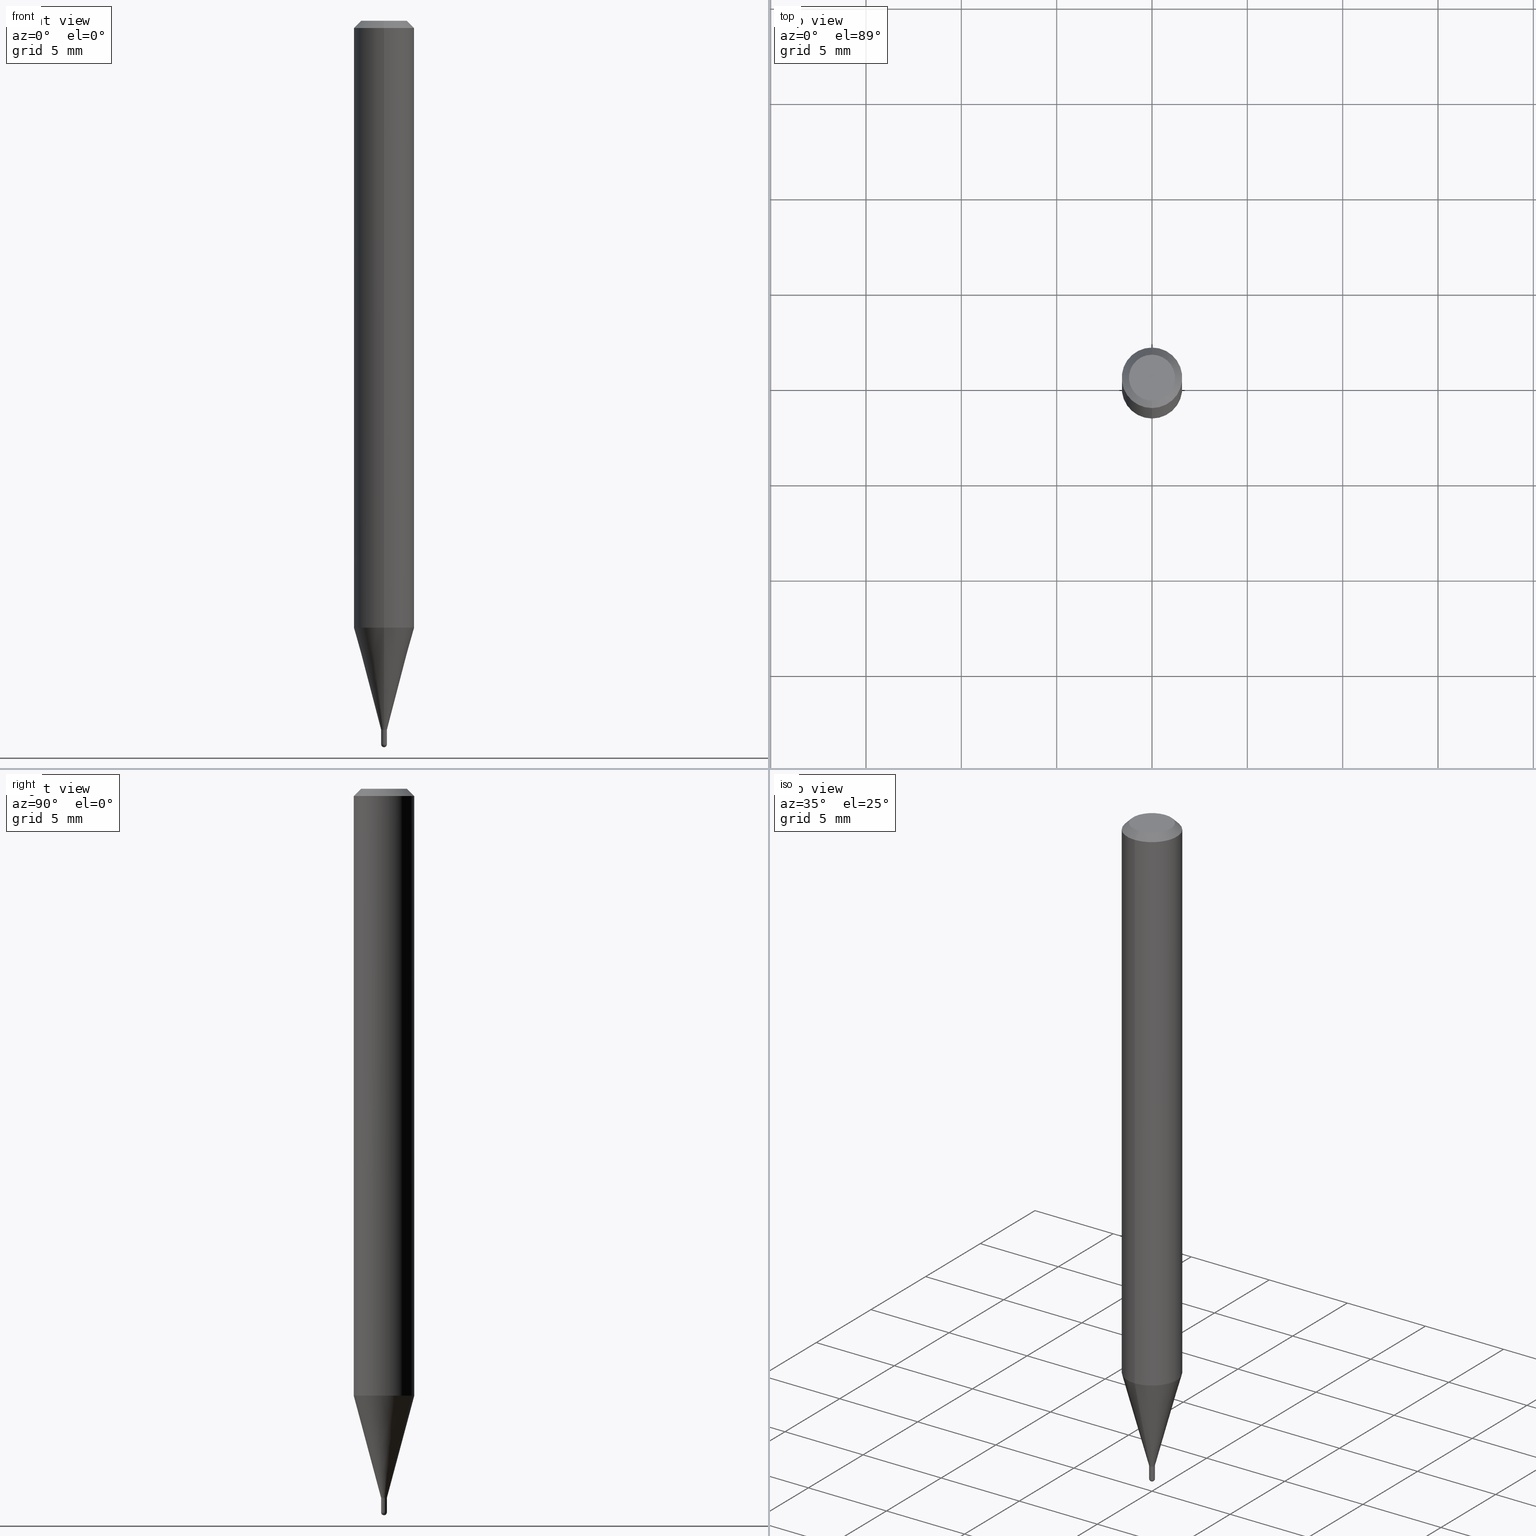
[diagram: canonical four-view strip — front | top / right | iso, engineering-drawing reading convention]
A machine part, canonical four-view strip (front | top / right | iso — engineering-drawing reading convention). The complete STEP part file that produces these views, byte-faithful:
ISO-10303-21;
HEADER;
FILE_DESCRIPTION (( 'STEP AP203' ),
    '1' );
FILE_NAME ('01435.STEP',
    '2024-03-07T20:50:26',
    ( '' ),
    ( '' ),
    'SwSTEP 2.0',
    'SolidWorks 2023',
    '' );
FILE_SCHEMA (( 'CONFIG_CONTROL_DESIGN' ));
ENDSEC;

DATA;
#1 = APPROVAL_STATUS ( 'not_yet_approved' ) ;
#2 = CONICAL_SURFACE ( 'NONE', #358, 0.005999999999999923797, 0.2617993877991573459 ) ;
#3 = DIRECTION ( 'NONE',  ( -6.982962677686266711E-15, -1.000000000000000000, 0.000000000000000000 ) ) ;
#4 = CARTESIAN_POINT ( 'NONE',  ( 3.064497474047025979E-29, -4.375333618994468371E-15, -1.253139129372365046 ) ) ;
#5 = EDGE_CURVE ( 'NONE', #362, #50, #103, .T. ) ;
#6 = FACE_OUTER_BOUND ( 'NONE', #283, .T. ) ;
#7 = PERSON_AND_ORGANIZATION_ROLE ( 'creator' ) ;
#8 = APPLICATION_CONTEXT ( 'configuration controlled 3d designs of mechanical parts and assemblies' ) ;
#9 = CIRCLE ( 'NONE', #363, 0.005999999999999923797 ) ;
#10 = ORIENTED_EDGE ( 'NONE', *, *, #205, .T. ) ;
#11 = ORIENTED_EDGE ( 'NONE', *, *, #105, .F. ) ;
#12 = APPROVAL_ROLE ( '' ) ;
#13 = DIRECTION ( 'NONE',  ( 1.839019923739648830E-15, 0.2588190451025317862, 0.9659258262890653146 ) ) ;
#14 = VERTEX_POINT ( 'NONE', #230 ) ;
#15 = AXIS2_PLACEMENT_3D ( 'NONE', #183, #29, #181 ) ;
#16 = CIRCLE ( 'NONE', #75, 0.006000000000000000992 ) ;
#17 = PRODUCT ( '01435', '01435', '', ( #393 ) ) ;
#18 = ORIENTED_EDGE ( 'NONE', *, *, #115, .F. ) ;
#19 = DIRECTION ( 'NONE',  ( 7.105427357601001070E-15, 1.000000000000000000, 0.000000000000000000 ) ) ;
#20 = EDGE_LOOP ( 'NONE', ( #433, #259, #97, #353, #138 ) ) ;
#21 = PRODUCT_DEFINITION ( 'UNKNOWN', '', #420, #443 ) ;
#22 = DIRECTION ( 'NONE',  ( -6.982962677686266711E-15, -1.000000000000000000, 0.000000000000000000 ) ) ;
#23 = ORIENTED_EDGE ( 'NONE', *, *, #223, .T. ) ;
#24 = APPROVAL_PERSON_ORGANIZATION ( #400, #242, #154 ) ;
#25 = EDGE_LOOP ( 'NONE', ( #287, #248, #18, #164 ) ) ;
#26 = VECTOR ( 'NONE', #206, 39.37007874015748143 ) ;
#27 = EDGE_CURVE ( 'NONE', #14, #507, #262, .T. ) ;
#28 = DIRECTION ( 'NONE',  ( -2.445456695284808407E-29, 3.491498682341725193E-15, 1.000000000000000000 ) ) ;
#29 = DIRECTION ( 'NONE',  ( -2.445456695284808407E-29, 3.491498682341725193E-15, 1.000000000000000000 ) ) ;
#30 = ORIENTED_EDGE ( 'NONE', *, *, #346, .F. ) ;
#31 = CARTESIAN_POINT ( 'NONE',  ( 0.000000000000000000, 0.000000000000000000, 0.000000000000000000 ) ) ;
#32 = EDGE_LOOP ( 'NONE', ( #240, #335 ) ) ;
#33 = CIRCLE ( 'NONE', #218, 0.006000000000000077320 ) ;
#34 = DIRECTION ( 'NONE',  ( -6.982962677686265922E-15, -1.000000000000000000, 3.483106191921935554E-15 ) ) ;
#35 = CC_DESIGN_PERSON_AND_ORGANIZATION_ASSIGNMENT ( #199, #7, ( #21 ) ) ;
#36 = CARTESIAN_POINT ( 'NONE',  ( 3.668185042927215431E-31, -5.237248023512590131E-17, -0.01500000000000000812 ) ) ;
#37 = LINE ( 'NONE', #421, #389 ) ;
#38 = FACE_OUTER_BOUND ( 'NONE', #32, .T. ) ;
#39 = CARTESIAN_POINT ( 'NONE',  ( 0.000000000000000000, 0.000000000000000000, 0.000000000000000000 ) ) ;
#40 = ADVANCED_FACE ( 'NONE', ( #381 ), #473, .T. ) ;
#41 = DIRECTION ( 'NONE',  ( -6.982962677686265922E-15, -1.000000000000000000, 3.491498682341725193E-15 ) ) ;
#42 = DATE_AND_TIME ( #397, #279 ) ;
#43 = CARTESIAN_POINT ( 'NONE',  ( 3.580166332255040005E-29, -5.111528680066365187E-15, -1.463999999999999968 ) ) ;
#44 = AXIS2_PLACEMENT_3D ( 'NONE', #386, #76, #147 ) ;
#45 = CARTESIAN_POINT ( 'NONE',  ( 3.653530396440595201E-29, -5.216273120231661712E-15, -1.494000000000000439 ) ) ;
#46 = EDGE_CURVE ( 'NONE', #507, #50, #37, .T. ) ;
#47 = CARTESIAN_POINT ( 'NONE',  ( 0.006000000000000000992, -4.189777606611760791E-17, 2.925706065477561668E-31 ) ) ;
#48 = CIRCLE ( 'NONE', #415, 0.006000000000000000125 ) ;
#49 = DATE_AND_TIME ( #163, #304 ) ;
#50 = VERTEX_POINT ( 'NONE', #77 ) ;
#51 = ADVANCED_FACE ( 'NONE', ( #310 ), #265, .T. ) ;
#52 = DIRECTION ( 'NONE',  ( 6.982962677686265922E-15, 1.000000000000000000, -3.483106191921935554E-15 ) ) ;
#53 = COORDINATED_UNIVERSAL_TIME_OFFSET ( 5, 0, .BEHIND. ) ;
#54 = ORIENTED_EDGE ( 'NONE', *, *, #205, .F. ) ;
#55 = DIRECTION ( 'NONE',  ( -2.445456695284808127E-29, 3.491498682341725193E-15, 1.000000000000000000 ) ) ;
#56 = CARTESIAN_POINT ( 'NONE',  ( 3.580148601896959816E-29, -5.111554070948285808E-15, -1.463999999999999968 ) ) ;
#57 = CIRCLE ( 'NONE', #486, 0.006000000000000000992 ) ;
#58 = AXIS2_PLACEMENT_3D ( 'NONE', #334, #332, #52 ) ;
#59 = PERSON_AND_ORGANIZATION_ROLE ( 'classification_officer' ) ;
#60 = EDGE_CURVE ( 'NONE', #407, #302, #33, .T. ) ;
#61 = ORIENTED_EDGE ( 'NONE', *, *, #325, .T. ) ;
#62 = CALENDAR_DATE ( 2024, 7, 3 ) ;
#63 = ORIENTED_EDGE ( 'NONE', *, *, #440, .F. ) ;
#64 = FACE_OUTER_BOUND ( 'NONE', #456, .T. ) ;
#65 = DIRECTION ( 'NONE',  ( -6.982962677686265922E-15, -1.000000000000000000, 0.000000000000000000 ) ) ;
#66 = FACE_OUTER_BOUND ( 'NONE', #258, .T. ) ;
#67 = SPHERICAL_SURFACE ( 'NONE', #422, 0.006000000000000077320 ) ;
#68 = EDGE_CURVE ( 'NONE', #124, #50, #249, .T. ) ;
#69 = AXIS2_PLACEMENT_3D ( 'NONE', #351, #348, #385 ) ;
#70 = AXIS2_PLACEMENT_3D ( 'NONE', #435, #369, #89 ) ;
#71 = CARTESIAN_POINT ( 'NONE',  ( 3.580148601896960376E-29, -5.111554070948286597E-15, -1.464000000000000190 ) ) ;
#72 = DIRECTION ( 'NONE',  ( -1.000000000000000000, 6.982962677686265922E-15, -4.876176775795935793E-29 ) ) ;
#73 = EDGE_LOOP ( 'NONE', ( #499, #119, #253, #63 ) ) ;
#74 = ADVANCED_FACE ( 'NONE', ( #286 ), #396, .T. ) ;
#75 = AXIS2_PLACEMENT_3D ( 'NONE', #406, #255, #93 ) ;
#76 = DIRECTION ( 'NONE',  ( -2.445456695284808407E-29, 3.491498682341725193E-15, 1.000000000000000000 ) ) ;
#77 = CARTESIAN_POINT ( 'NONE',  ( 4.440892098500933817E-16, 0.06249999999999995143, -0.01500000000000022669 ) ) ;
#78 = LINE ( 'NONE', #241, #250 ) ;
#79 = ADVANCED_FACE ( 'NONE', ( #238 ), #273, .T. ) ;
#80 = CIRCLE ( 'NONE', #445, 0.006000000000000077320 ) ;
#81 = ORIENTED_EDGE ( 'NONE', *, *, #27, .F. ) ;
#82 = AXIS2_PLACEMENT_3D ( 'NONE', #39, #196, #359 ) ;
#83 = DIRECTION ( 'NONE',  ( -2.445468806185136597E-29, 3.491481338843145583E-15, 1.000000000000000000 ) ) ;
#84 = FACE_OUTER_BOUND ( 'NONE', #20, .T. ) ;
#85 = PERSON_AND_ORGANIZATION ( #460, #177 ) ;
#86 = EDGE_LOOP ( 'NONE', ( #136, #131, #349, #123 ) ) ;
#87 = CC_DESIGN_DATE_AND_TIME_ASSIGNMENT ( #256, #166, ( #90 ) ) ;
#88 = AXIS2_PLACEMENT_3D ( 'NONE', #31, #317, #235 ) ;
#89 = DIRECTION ( 'NONE',  ( 1.000000000000000000, -6.982962677686266711E-15, 4.876176775795935232E-29 ) ) ;
#90 = SECURITY_CLASSIFICATION ( '', '', #337 ) ;
#91 = ORIENTED_EDGE ( 'NONE', *, *, #102, .F. ) ;
#92 = DIRECTION ( 'NONE',  ( 1.000000000000000000, -7.105427357601001070E-15, 4.926315508542082329E-29 ) ) ;
#93 = DIRECTION ( 'NONE',  ( 1.000000000000000000, -6.982962677686331397E-15, 0.000000000000000000 ) ) ;
#94 = EDGE_LOOP ( 'NONE', ( #213, #315 ) ) ;
#95 = DIRECTION ( 'NONE',  ( -2.445456695284808407E-29, 3.491498682341725193E-15, 1.000000000000000000 ) ) ;
#96 = ADVANCED_FACE ( 'NONE', ( #66 ), #329, .T. ) ;
#97 = ORIENTED_EDGE ( 'NONE', *, *, #105, .T. ) ;
#98 = FACE_OUTER_BOUND ( 'NONE', #297, .T. ) ;
#99 = ORIENTED_EDGE ( 'NONE', *, *, #160, .F. ) ;
#100 = CARTESIAN_POINT ( 'NONE',  ( -4.287811248607203282E-16, -0.06250000000000005551, -0.01499999999999979128 ) ) ;
#101 = VERTEX_POINT ( 'NONE', #201 ) ;
#102 = EDGE_CURVE ( 'NONE', #503, #319, #403, .T. ) ;
#103 = LINE ( 'NONE', #466, #186 ) ;
#104 = APPROVAL_STATUS ( 'not_yet_approved' ) ;
#105 = EDGE_CURVE ( 'NONE', #302, #503, #437, .T. ) ;
#106 = CARTESIAN_POINT ( 'NONE',  ( -4.189777606608140659E-17, -0.006000000000005052507, -1.463500000000000023 ) ) ;
#107 = AXIS2_PLACEMENT_3D ( 'NONE', #459, #95, #377 ) ;
#108 = VERTEX_POINT ( 'NONE', #156 ) ;
#109 = CLOSED_SHELL ( 'NONE', ( #483, #51, #451, #318, #231 ) ) ;
#110 = ORIENTED_EDGE ( 'NONE', *, *, #60, .F. ) ;
#111 = DIRECTION ( 'NONE',  ( -2.445456695284808407E-29, 3.491498682341725193E-15, 1.000000000000000000 ) ) ;
#112 = DIRECTION ( 'NONE',  ( 2.438088387897960049E-29, -3.491481338843145188E-15, -1.000000000000000000 ) ) ;
#113 = ADVANCED_FACE ( 'NONE', ( #126 ), #179, .T. ) ;
#114 = LOCAL_TIME ( 15, 50, 26.00000000000000000, #450 ) ;
#115 = EDGE_CURVE ( 'NONE', #276, #302, #16, .T. ) ;
#116 = ORIENTED_EDGE ( 'NONE', *, *, #478, .F. ) ;
#117 = CARTESIAN_POINT ( 'NONE',  ( 0.000000000000000000, 0.000000000000000000, 0.000000000000000000 ) ) ;
#118 = CARTESIAN_POINT ( 'NONE',  ( 3.580166332255040005E-29, -5.111528680066365187E-15, -1.463999999999999968 ) ) ;
#119 = ORIENTED_EDGE ( 'NONE', *, *, #134, .T. ) ;
#120 = DIRECTION ( 'NONE',  ( -4.937700262164674260E-15, -0.7071067811865632269, 0.7071067811865319186 ) ) ;
#121 = CC_DESIGN_PERSON_AND_ORGANIZATION_ASSIGNMENT ( #405, #355, ( #17 ) ) ;
#122 = CALENDAR_DATE ( 2024, 7, 3 ) ;
#123 = ORIENTED_EDGE ( 'NONE', *, *, #182, .F. ) ;
#124 = VERTEX_POINT ( 'NONE', #198 ) ;
#125 = CARTESIAN_POINT ( 'NONE',  ( -0.006000000000000000992, -5.121268336003407400E-15, -1.494000000000000439 ) ) ;
#126 = FACE_OUTER_BOUND ( 'NONE', #376, .T. ) ;
#127 = EDGE_LOOP ( 'NONE', ( #110, #233, #509, #11 ) ) ;
#128 = CIRCLE ( 'NONE', #15, 0.04749999999999999362 ) ;
#129 = DIRECTION ( 'NONE',  ( -2.445456695284808407E-29, 3.491498682341725193E-15, 1.000000000000000000 ) ) ;
#130 = AXIS2_PLACEMENT_3D ( 'NONE', #266, #55, #261 ) ;
#131 = ORIENTED_EDGE ( 'NONE', *, *, #346, .T. ) ;
#132 = ADVANCED_FACE ( 'NONE', ( #210 ), #482, .F. ) ;
#133 = CARTESIAN_POINT ( 'NONE',  ( 2.166551326140729092E-46, -3.093291782688908971E-32, -8.859495775648578081E-18 ) ) ;
#134 = EDGE_CURVE ( 'NONE', #507, #14, #314, .T. ) ;
#135 = DIRECTION ( 'NONE',  ( -6.982962677686265922E-15, -1.000000000000000000, 0.000000000000000000 ) ) ;
#136 = ORIENTED_EDGE ( 'NONE', *, *, #352, .T. ) ;
#137 = DIRECTION ( 'NONE',  ( -2.445456695284808688E-29, 3.491498682341725193E-15, 1.000000000000000000 ) ) ;
#138 = ORIENTED_EDGE ( 'NONE', *, *, #192, .F. ) ;
#139 = CARTESIAN_POINT ( 'NONE',  ( 3.316907271900976096E-16, 0.04749999999999999362, -1.702759352990562277E-16 ) ) ;
#140 = APPROVAL_PERSON_ORGANIZATION ( #301, #512, #12 ) ;
#141 = DIRECTION ( 'NONE',  ( -2.445456695284808688E-29, 3.491498682341725193E-15, 1.000000000000000000 ) ) ;
#142 = DIRECTION ( 'NONE',  ( -6.982962677686265922E-15, -1.000000000000000000, 0.000000000000000000 ) ) ;
#143 = DIRECTION ( 'NONE',  ( -2.445456695284808407E-29, 3.491498682341725193E-15, 1.000000000000000000 ) ) ;
#144 = EDGE_CURVE ( 'NONE', #454, #108, #322, .T. ) ;
#145 = APPLICATION_PROTOCOL_DEFINITION ( 'international standard', 'config_control_design', 1994, #8 ) ;
#146 = CIRCLE ( 'NONE', #330, 0.006000000000000000992 ) ;
#147 = DIRECTION ( 'NONE',  ( -6.982962677686265922E-15, -1.000000000000000000, 0.000000000000000000 ) ) ;
#148 = CC_DESIGN_PERSON_AND_ORGANIZATION_ASSIGNMENT ( #296, #59, ( #90 ) ) ;
#149 = CYLINDRICAL_SURFACE ( 'NONE', #69, 0.005999999999999923797 ) ;
#150 = CARTESIAN_POINT ( 'NONE',  ( 3.653017296667086671E-29, -5.217007908311148520E-15, -1.494000000000000217 ) ) ;
#151 = LOCAL_TIME ( 15, 50, 26.00000000000000000, #53 ) ;
#152 = AXIS2_PLACEMENT_3D ( 'NONE', #191, #357, #3 ) ;
#153 = AXIS2_PLACEMENT_3D ( 'NONE', #36, #111, #34 ) ;
#154 = APPROVAL_ROLE ( '' ) ;
#155 = DIRECTION ( 'NONE',  ( -2.445456695284808407E-29, 3.491498682341725193E-15, 1.000000000000000000 ) ) ;
#156 = CARTESIAN_POINT ( 'NONE',  ( 4.263256414564111635E-17, 0.005999999999994795087, -1.463500000000000023 ) ) ;
#157 = ORIENTED_EDGE ( 'NONE', *, *, #367, .T. ) ;
#158 = DIRECTION ( 'NONE',  ( -6.982962677686265922E-15, -1.000000000000000000, 0.000000000000000000 ) ) ;
#159 = VECTOR ( 'NONE', #13, 39.37007874015748143 ) ;
#160 = EDGE_CURVE ( 'NONE', #338, #108, #303, .T. ) ;
#161 = LINE ( 'NONE', #481, #159 ) ;
#162 = CARTESIAN_POINT ( 'NONE',  ( 3.653530396440595201E-29, -5.216273120231661712E-15, -1.494000000000000439 ) ) ;
#163 = CALENDAR_DATE ( 2024, 7, 3 ) ;
#164 = ORIENTED_EDGE ( 'NONE', *, *, #401, .F. ) ;
#165 = DIRECTION ( 'NONE',  ( -2.445456695284808407E-29, 3.491498682341725193E-15, 1.000000000000000000 ) ) ;
#166 = DATE_TIME_ROLE ( 'classification_date' ) ;
#167 = EDGE_CURVE ( 'NONE', #305, #300, #239, .T. ) ;
#168 = EDGE_LOOP ( 'NONE', ( #30, #449, #308, #116 ) ) ;
#169 = AXIS2_PLACEMENT_3D ( 'NONE', #221, #344, #452 ) ;
#170 = AXIS2_PLACEMENT_3D ( 'NONE', #175, #495, #142 ) ;
#171 = ORIENTED_EDGE ( 'NONE', *, *, #392, .T. ) ;
#172 = DIRECTION ( 'NONE',  ( -2.445468806185136597E-29, 3.491481338843145583E-15, 1.000000000000000000 ) ) ;
#173 = ORIENTED_EDGE ( 'NONE', *, *, #134, .F. ) ;
#174 = CARTESIAN_POINT ( 'NONE',  ( 3.667433559617443502E-29, -5.238324190383952333E-15, -1.500000000000000444 ) ) ;
#175 = CARTESIAN_POINT ( 'NONE',  ( 3.580148601896959816E-29, -5.111554070948285808E-15, -1.463999999999999968 ) ) ;
#176 = CARTESIAN_POINT ( 'NONE',  ( -0.006000000000000000992, 4.263256414560601820E-17, -2.951361054152944376E-31 ) ) ;
#177 = ORGANIZATION ( 'UNSPECIFIED', 'UNSPECIFIED', '' ) ;
#178 = CC_DESIGN_DATE_AND_TIME_ASSIGNMENT ( #501, #464, ( #21 ) ) ;
#179 = CONICAL_SURFACE ( 'NONE', #58, 0.06250000000000000000, 0.7853981633974483900 ) ;
#180 = CARTESIAN_POINT ( 'NONE',  ( 3.907985046684130252E-17, 0.005499999999994887451, -1.463999999999999968 ) ) ;
#181 = DIRECTION ( 'NONE',  ( -6.982962677686266711E-15, -1.000000000000000000, 3.491498682341725193E-15 ) ) ;
#182 = EDGE_CURVE ( 'NONE', #300, #454, #379, .T. ) ;
#183 = CARTESIAN_POINT ( 'NONE',  ( 2.166551326140729092E-46, -3.093291782688908971E-32, -8.859495775648578081E-18 ) ) ;
#184 = APPROVAL_PERSON_ORGANIZATION ( #505, #410, #277 ) ;
#185 = EDGE_LOOP ( 'NONE', ( #99, #294, #368, #438 ) ) ;
#186 = VECTOR ( 'NONE', #274, 39.37007874015748143 ) ;
#187 = FACE_OUTER_BOUND ( 'NONE', #94, .T. ) ;
#188 = ORIENTED_EDGE ( 'NONE', *, *, #478, .T. ) ;
#189 = CARTESIAN_POINT ( 'NONE',  ( 3.668185042927215431E-31, -5.237248023512590131E-17, -0.01500000000000000812 ) ) ;
#190 = DIRECTION ( 'NONE',  ( 1.000000000000000000, 0.000000000000000000, 0.000000000000000000 ) ) ;
#191 = CARTESIAN_POINT ( 'NONE',  ( 3.653017296667086671E-29, -5.217007908311148520E-15, -1.494000000000000217 ) ) ;
#192 = EDGE_CURVE ( 'NONE', #390, #319, #48, .T. ) ;
#193 = CC_DESIGN_SECURITY_CLASSIFICATION ( #90, ( #420 ) ) ;
#194 = ORIENTED_EDGE ( 'NONE', *, *, #494, .F. ) ;
#195 = VECTOR ( 'NONE', #264, 39.37007874015748143 ) ;
#196 = DIRECTION ( 'NONE',  ( -2.445456695284808407E-29, 3.491498682341725193E-15, 1.000000000000000000 ) ) ;
#197 = DIRECTION ( 'NONE',  ( -2.445456695284808407E-29, 3.491498682341725193E-15, 1.000000000000000000 ) ) ;
#198 = CARTESIAN_POINT ( 'NONE',  ( -4.364351673553912750E-16, -0.06250000000000005551, -0.01499999999999979128 ) ) ;
#199 = PERSON_AND_ORGANIZATION ( #460, #177 ) ;
#200 = ADVANCED_FACE ( 'NONE', ( #204 ), #209, .T. ) ;
#201 = CARTESIAN_POINT ( 'NONE',  ( 4.263256414564281733E-17, 0.005999999999994822843, -1.494000000000000439 ) ) ;
#202 = CONICAL_SURFACE ( 'NONE', #169, 0.005999999999999923797, 0.2617993877991573459 ) ;
#203 = AXIS2_PLACEMENT_3D ( 'NONE', #399, #480, #245 ) ;
#204 = FACE_OUTER_BOUND ( 'NONE', #73, .T. ) ;
#205 = EDGE_CURVE ( 'NONE', #491, #14, #78, .T. ) ;
#206 = DIRECTION ( 'NONE',  ( -2.445468806185136877E-29, 3.491481338843145188E-15, 1.000000000000000000 ) ) ;
#207 = APPROVAL_DATE_TIME ( #49, #512 ) ;
#208 = ORIENTED_EDGE ( 'NONE', *, *, #68, .T. ) ;
#209 = CYLINDRICAL_SURFACE ( 'NONE', #446, 0.06250000000000000000 ) ;
#210 = FACE_OUTER_BOUND ( 'NONE', #185, .T. ) ;
#211 = ADVANCED_FACE ( 'NONE', ( #6 ), #2, .T. ) ;
#212 = APPROVAL_STATUS ( 'not_yet_approved' ) ;
#213 = ORIENTED_EDGE ( 'NONE', *, *, #229, .T. ) ;
#214 = LINE ( 'NONE', #176, #195 ) ;
#215 = ORIENTED_EDGE ( 'NONE', *, *, #282, .F. ) ;
#216 = CC_DESIGN_APPROVAL ( #410, ( #420 ) ) ;
#217 = LINE ( 'NONE', #100, #295 ) ;
#218 = AXIS2_PLACEMENT_3D ( 'NONE', #150, #497, #384 ) ;
#219 = DATE_AND_TIME ( #122, #151 ) ;
#220 = ORIENTED_EDGE ( 'NONE', *, *, #392, .F. ) ;
#221 = CARTESIAN_POINT ( 'NONE',  ( 3.580148601896960376E-29, -5.111554070948286597E-15, -1.464000000000000190 ) ) ;
#222 = PERSON_AND_ORGANIZATION_ROLE ( 'design_supplier' ) ;
#223 = EDGE_CURVE ( 'NONE', #503, #101, #146, .T. ) ;
#224 = DIRECTION ( 'NONE',  ( -6.982962677686265922E-15, -1.000000000000000000, 0.000000000000000000 ) ) ;
#225 = ORIENTED_EDGE ( 'NONE', *, *, #229, .F. ) ;
#226 = CARTESIAN_POINT ( 'NONE',  ( 0.006000000000000000125, -5.153426456132483639E-15, -1.463999999999999968 ) ) ;
#227 = CIRCLE ( 'NONE', #234, 0.006000000000000000125 ) ;
#228 = DIRECTION ( 'NONE',  ( -6.982962677686265922E-15, -1.000000000000000000, 0.000000000000000000 ) ) ;
#229 = EDGE_CURVE ( 'NONE', #319, #390, #227, .T. ) ;
#230 = CARTESIAN_POINT ( 'NONE',  ( -4.364351673553611010E-16, -0.06250000000000438538, -1.253139129372364824 ) ) ;
#231 = ADVANCED_FACE ( 'NONE', ( #84 ), #244, .T. ) ;
#232 = DIRECTION ( 'NONE',  ( -2.445456695284808407E-29, 3.491498682341725193E-15, 1.000000000000000000 ) ) ;
#233 = ORIENTED_EDGE ( 'NONE', *, *, #388, .T. ) ;
#234 = AXIS2_PLACEMENT_3D ( 'NONE', #118, #360, #328 ) ;
#235 = DIRECTION ( 'NONE',  ( 1.000000000000000000, -6.982962677686266711E-15, 4.876176775795935232E-29 ) ) ;
#236 = ORIENTED_EDGE ( 'NONE', *, *, #160, .T. ) ;
#237 = CARTESIAN_POINT ( 'NONE',  ( 4.085620730624127723E-17, 0.005499999999994887451, -1.463999999999999968 ) ) ;
#238 = FACE_OUTER_BOUND ( 'NONE', #168, .T. ) ;
#239 = CIRCLE ( 'NONE', #428, 0.005499999999999999681 ) ;
#240 = ORIENTED_EDGE ( 'NONE', *, *, #352, .F. ) ;
#241 = CARTESIAN_POINT ( 'NONE',  ( -4.189777606608125867E-17, -0.006000000000005035160, -1.464000000000000190 ) ) ;
#242 = APPROVAL ( #1, 'UNSPECIFIED' ) ;
#243 = DIRECTION ( 'NONE',  ( -2.445468806185136597E-29, 3.491481338843145583E-15, 1.000000000000000000 ) ) ;
#244 = CYLINDRICAL_SURFACE ( 'NONE', #70, 0.006000000000000000992 ) ;
#245 = DIRECTION ( 'NONE',  ( -6.982962677686265922E-15, -1.000000000000000000, 3.491498682341725193E-15 ) ) ;
#246 = CIRCLE ( 'NONE', #412, 0.005499999999999999681 ) ;
#247 = COORDINATED_UNIVERSAL_TIME_OFFSET ( 5, 0, .BEHIND. ) ;
#248 = ORIENTED_EDGE ( 'NONE', *, *, #60, .T. ) ;
#249 = CIRCLE ( 'NONE', #306, 0.06250000000000000000 ) ;
#250 = VECTOR ( 'NONE', #398, 39.37007874015748854 ) ;
#251 = EDGE_CURVE ( 'NONE', #338, #507, #161, .T. ) ;
#252 = LINE ( 'NONE', #333, #298 ) ;
#253 = ORIENTED_EDGE ( 'NONE', *, *, #425, .T. ) ;
#254 = CARTESIAN_POINT ( 'NONE',  ( 3.840629472727447874E-16, 0.04749999999999999362, -1.747056831868805136E-16 ) ) ;
#255 = DIRECTION ( 'NONE',  ( -2.445468806185136597E-29, 3.491481338843145583E-15, 1.000000000000000000 ) ) ;
#256 = DATE_AND_TIME ( #62, #394 ) ;
#257 = ADVANCED_BREP_SHAPE_REPRESENTATION ( '01435', ( #434, #268, #380 ), #448 ) ;
#258 = EDGE_LOOP ( 'NONE', ( #387, #345, #484, #469 ) ) ;
#259 = ORIENTED_EDGE ( 'NONE', *, *, #115, .T. ) ;
#260 = VECTOR ( 'NONE', #137, 39.37007874015748143 ) ;
#261 = DIRECTION ( 'NONE',  ( -6.982962677686265922E-15, -1.000000000000000000, 3.491498682341725193E-15 ) ) ;
#262 = CIRCLE ( 'NONE', #281, 0.06250000000000000000 ) ;
#263 = ORIENTED_EDGE ( 'NONE', *, *, #251, .F. ) ;
#264 = DIRECTION ( 'NONE',  ( -2.445468806185136877E-29, 3.491481338843145188E-15, 1.000000000000000000 ) ) ;
#265 = SPHERICAL_SURFACE ( 'NONE', #152, 0.006000000000000077320 ) ;
#266 = CARTESIAN_POINT ( 'NONE',  ( 3.580148601896959816E-29, -5.111554070948285808E-15, -1.463999999999999968 ) ) ;
#267 = CARTESIAN_POINT ( 'NONE',  ( -3.840629472723865213E-17, -0.005500000000005111044, -1.463999999999999968 ) ) ;
#268 = MANIFOLD_SOLID_BREP ( 'Body-Move/Copy2[2]', #458 ) ;
#269 = ORIENTED_EDGE ( 'NONE', *, *, #378, .T. ) ;
#270 = DIRECTION ( 'NONE',  ( 6.982962677686265922E-15, 1.000000000000000000, -3.483106191921935554E-15 ) ) ;
#271 = CARTESIAN_POINT ( 'NONE',  ( -3.773273898774340269E-16, -0.04749999999999999362, 1.569866916355833451E-16 ) ) ;
#272 = CIRCLE ( 'NONE', #153, 0.06250000000000000000 ) ;
#273 = CONICAL_SURFACE ( 'NONE', #170, 0.005499999999999999681, 0.7853981633974739252 ) ;
#274 = DIRECTION ( 'NONE',  ( 4.937700262164548042E-15, 0.7071067811865451302, -0.7071067811865499042 ) ) ;
#275 = FACE_OUTER_BOUND ( 'NONE', #462, .T. ) ;
#276 = VERTEX_POINT ( 'NONE', #125 ) ;
#277 = APPROVAL_ROLE ( '' ) ;
#278 = UNCERTAINTY_MEASURE_WITH_UNIT (LENGTH_MEASURE( 1.000000000000000082E-05 ), #470, 'distance_accuracy_value', 'NONE');
#279 = LOCAL_TIME ( 15, 50, 26.00000000000000000, #439 ) ;
#280 = ORIENTED_EDGE ( 'NONE', *, *, #440, .T. ) ;
#281 = AXIS2_PLACEMENT_3D ( 'NONE', #424, #321, #391 ) ;
#282 = EDGE_CURVE ( 'NONE', #491, #454, #252, .T. ) ;
#283 = EDGE_LOOP ( 'NONE', ( #269, #331, #81, #54 ) ) ;
#284 = CYLINDRICAL_SURFACE ( 'NONE', #88, 0.006000000000000000992 ) ;
#285 = DIRECTION ( 'NONE',  ( -2.445456695284808688E-29, 3.491498682341725193E-15, 1.000000000000000000 ) ) ;
#286 = FACE_OUTER_BOUND ( 'NONE', #86, .T. ) ;
#287 = ORIENTED_EDGE ( 'NONE', *, *, #388, .F. ) ;
#288 = DIRECTION ( 'NONE',  ( 0.000000000000000000, 0.000000000000000000, 1.000000000000000000 ) ) ;
#289 = CC_DESIGN_PERSON_AND_ORGANIZATION_ASSIGNMENT ( #413, #222, ( #420 ) ) ;
#290 = CARTESIAN_POINT ( 'NONE',  ( 3.578925873549317686E-29, -5.109808321607115166E-15, -1.463500000000000023 ) ) ;
#291 = AXIS2_PLACEMENT_3D ( 'NONE', #162, #361, #453 ) ;
#292 = APPLICATION_PROTOCOL_DEFINITION ( 'international standard', 'config_control_design', 1994, #416 ) ;
#293 = CARTESIAN_POINT ( 'NONE',  ( 0.000000000000000000, 0.000000000000000000, 0.000000000000000000 ) ) ;
#294 = ORIENTED_EDGE ( 'NONE', *, *, #378, .F. ) ;
#295 = VECTOR ( 'NONE', #382, 39.37007874015748143 ) ;
#296 = PERSON_AND_ORGANIZATION ( #460, #177 ) ;
#297 = EDGE_LOOP ( 'NONE', ( #370, #157 ) ) ;
#298 = VECTOR ( 'NONE', #285, 39.37007874015748143 ) ;
#299 = CARTESIAN_POINT ( 'NONE',  ( 3.653530396440595201E-29, -5.216273120231661712E-15, -1.494000000000000439 ) ) ;
#300 = VERTEX_POINT ( 'NONE', #431 ) ;
#301 = PERSON_AND_ORGANIZATION ( #460, #177 ) ;
#302 = VERTEX_POINT ( 'NONE', #395 ) ;
#303 = LINE ( 'NONE', #493, #479 ) ;
#304 = LOCAL_TIME ( 15, 50, 26.00000000000000000, #247 ) ;
#305 = VERTEX_POINT ( 'NONE', #237 ) ;
#306 = AXIS2_PLACEMENT_3D ( 'NONE', #347, #155, #474 ) ;
#307 = DIRECTION ( 'NONE',  ( -2.445456695284808407E-29, 3.491498682341725193E-15, 1.000000000000000000 ) ) ;
#308 = ORIENTED_EDGE ( 'NONE', *, *, #182, .T. ) ;
#309 = CARTESIAN_POINT ( 'NONE',  ( 2.433608869978673661E-16, 0.005999999999994812434, -1.464000000000000190 ) ) ;
#310 = FACE_OUTER_BOUND ( 'NONE', #127, .T. ) ;
#311 = ADVANCED_FACE ( 'NONE', ( #38 ), #374, .F. ) ;
#312 = PLANE ( 'NONE',  #472 ) ;
#313 = CIRCLE ( 'NONE', #477, 0.04749999999999999362 ) ;
#314 = CIRCLE ( 'NONE', #365, 0.06250000000000000000 ) ;
#315 = ORIENTED_EDGE ( 'NONE', *, *, #192, .T. ) ;
#316 = LENGTH_MEASURE_WITH_UNIT ( LENGTH_MEASURE( 0.02539999999999999897 ), #465 );
#317 = DIRECTION ( 'NONE',  ( -2.445468806185136597E-29, 3.491481338843145583E-15, 1.000000000000000000 ) ) ;
#318 = ADVANCED_FACE ( 'NONE', ( #488 ), #67, .T. ) ;
#319 = VERTEX_POINT ( 'NONE', #226 ) ;
#320 = CIRCLE ( 'NONE', #44, 0.005999999999999923797 ) ;
#321 = DIRECTION ( 'NONE',  ( -2.445456695284808407E-29, 3.491498682341725193E-15, 1.000000000000000000 ) ) ;
#322 = CIRCLE ( 'NONE', #467, 0.005999999999999923797 ) ;
#323 = CC_DESIGN_APPROVAL ( #242, ( #21 ) ) ;
#324 = APPROVAL_DATE_TIME ( #42, #242 ) ;
#325 = EDGE_CURVE ( 'NONE', #276, #390, #214, .T. ) ;
#326 = DIMENSIONAL_EXPONENTS ( 1.000000000000000000, 0.000000000000000000, 0.000000000000000000, 0.000000000000000000, 0.000000000000000000, 0.000000000000000000, 0.000000000000000000 ) ;
#327 = DIRECTION ( 'NONE',  ( -2.445456695284808407E-29, 3.491498682341725193E-15, 1.000000000000000000 ) ) ;
#328 = DIRECTION ( 'NONE',  ( 1.000000000000000000, -6.982962677686332186E-15, 0.000000000000000000 ) ) ;
#329 = CYLINDRICAL_SURFACE ( 'NONE', #203, 0.06250000000000000000 ) ;
#330 = AXIS2_PLACEMENT_3D ( 'NONE', #45, #243, #441 ) ;
#331 = ORIENTED_EDGE ( 'NONE', *, *, #251, .T. ) ;
#332 = DIRECTION ( 'NONE',  ( 2.445456695284808407E-29, -3.491498682341725193E-15, -1.000000000000000000 ) ) ;
#333 = CARTESIAN_POINT ( 'NONE',  ( -4.189777606611706556E-17, -0.005999999999999923797, 2.094899209405008565E-17 ) ) ;
#334 = CARTESIAN_POINT ( 'NONE',  ( 3.668185042927215431E-31, -5.237248023512590131E-17, -0.01500000000000000812 ) ) ;
#335 = ORIENTED_EDGE ( 'NONE', *, *, #167, .F. ) ;
#336 = AXIS2_PLACEMENT_3D ( 'NONE', #189, #354, #270 ) ;
#337 = SECURITY_CLASSIFICATION_LEVEL ( 'unclassified' ) ;
#338 = VERTEX_POINT ( 'NONE', #309 ) ;
#339 = ADVANCED_FACE ( 'NONE', ( #64 ), #202, .T. ) ;
#340 = DIRECTION ( 'NONE',  ( 1.000000000000000000, -6.982962677686331397E-15, 0.000000000000000000 ) ) ;
#341 = ORIENTED_EDGE ( 'NONE', *, *, #5, .T. ) ;
#342 = CARTESIAN_POINT ( 'NONE',  ( -4.364351673553916201E-16, -0.06250000000000000000, 2.182186676463578245E-16 ) ) ;
#343 = PERSON_AND_ORGANIZATION_ROLE ( 'creator' ) ;
#344 = DIRECTION ( 'NONE',  ( -2.445456695284808407E-29, 3.491498682341725193E-15, 1.000000000000000000 ) ) ;
#345 = ORIENTED_EDGE ( 'NONE', *, *, #46, .T. ) ;
#346 = EDGE_CURVE ( 'NONE', #305, #108, #496, .T. ) ;
#347 = CARTESIAN_POINT ( 'NONE',  ( 3.668185042927215431E-31, -5.237248023512590131E-17, -0.01500000000000000812 ) ) ;
#348 = DIRECTION ( 'NONE',  ( -2.445456695284808407E-29, 3.491498682341725193E-15, 1.000000000000000000 ) ) ;
#349 = ORIENTED_EDGE ( 'NONE', *, *, #144, .F. ) ;
#350 = CARTESIAN_POINT ( 'NONE',  ( 4.440892098500930859E-16, 0.06249999999999561462, -1.253139129372365490 ) ) ;
#351 = CARTESIAN_POINT ( 'NONE',  ( 0.000000000000000000, 0.000000000000000000, 0.000000000000000000 ) ) ;
#352 = EDGE_CURVE ( 'NONE', #300, #305, #246, .T. ) ;
#353 = ORIENTED_EDGE ( 'NONE', *, *, #102, .T. ) ;
#354 = DIRECTION ( 'NONE',  ( 2.445456695284808407E-29, -3.491498682341725193E-15, -1.000000000000000000 ) ) ;
#355 = PERSON_AND_ORGANIZATION_ROLE ( 'design_owner' ) ;
#356 = CIRCLE ( 'NONE', #107, 0.005999999999999923797 ) ;
#357 = DIRECTION ( 'NONE',  ( 1.000000000000000000, -6.982962677686266711E-15, 4.883557194083112901E-29 ) ) ;
#358 = AXIS2_PLACEMENT_3D ( 'NONE', #366, #197, #158 ) ;
#359 = DIRECTION ( 'NONE',  ( -6.982962677686265922E-15, -1.000000000000000000, 3.491498682341725193E-15 ) ) ;
#360 = DIRECTION ( 'NONE',  ( -2.445468806185136597E-29, 3.491481338843145583E-15, 1.000000000000000000 ) ) ;
#361 = DIRECTION ( 'NONE',  ( -2.445468806185136597E-29, 3.491481338843145583E-15, 1.000000000000000000 ) ) ;
#362 = VERTEX_POINT ( 'NONE', #254 ) ;
#363 = AXIS2_PLACEMENT_3D ( 'NONE', #71, #232, #228 ) ;
#364 = EDGE_LOOP ( 'NONE', ( #487, #61, #225, #91, #23 ) ) ;
#365 = AXIS2_PLACEMENT_3D ( 'NONE', #4, #327, #475 ) ;
#366 = CARTESIAN_POINT ( 'NONE',  ( 3.580148601896960376E-29, -5.111554070948286597E-15, -1.464000000000000190 ) ) ;
#367 = EDGE_CURVE ( 'NONE', #442, #362, #313, .T. ) ;
#368 = ORIENTED_EDGE ( 'NONE', *, *, #282, .T. ) ;
#369 = DIRECTION ( 'NONE',  ( -2.445468806185136597E-29, 3.491481338843145583E-15, 1.000000000000000000 ) ) ;
#370 = ORIENTED_EDGE ( 'NONE', *, *, #494, .T. ) ;
#371 = CARTESIAN_POINT ( 'NONE',  ( -0.006000000000000000125, -5.121268336003407400E-15, -1.463999999999999968 ) ) ;
#372 = CC_DESIGN_PERSON_AND_ORGANIZATION_ASSIGNMENT ( #85, #343, ( #420 ) ) ;
#373 = VECTOR ( 'NONE', #120, 39.37007874015748143 ) ;
#374 = PLANE ( 'NONE',  #130 ) ;
#375 = APPROVAL_DATE_TIME ( #219, #410 ) ;
#376 = EDGE_LOOP ( 'NONE', ( #220, #194, #341, #280 ) ) ;
#377 = DIRECTION ( 'NONE',  ( -6.982962677686265922E-15, -1.000000000000000000, 0.000000000000000000 ) ) ;
#378 = EDGE_CURVE ( 'NONE', #491, #338, #356, .T. ) ;
#379 = LINE ( 'NONE', #267, #373 ) ;
#380 = AXIS2_PLACEMENT_3D ( 'NONE', #117, #288, #190 ) ;
#381 = FACE_OUTER_BOUND ( 'NONE', #429, .T. ) ;
#382 = DIRECTION ( 'NONE',  ( -4.851104656540964275E-15, -0.7071067811865500152, -0.7071067811865450192 ) ) ;
#383 = VECTOR ( 'NONE', #485, 39.37007874015748143 ) ;
#384 = DIRECTION ( 'NONE',  ( -6.982962677686266711E-15, -1.000000000000000000, 0.000000000000000000 ) ) ;
#385 = DIRECTION ( 'NONE',  ( -6.982962677686265922E-15, -1.000000000000000000, 3.491498682341725193E-15 ) ) ;
#386 = CARTESIAN_POINT ( 'NONE',  ( 3.578925873549317686E-29, -5.109808321607115166E-15, -1.463500000000000023 ) ) ;
#387 = ORIENTED_EDGE ( 'NONE', *, *, #27, .T. ) ;
#388 = EDGE_CURVE ( 'NONE', #407, #101, #80, .T. ) ;
#389 = VECTOR ( 'NONE', #511, 39.37007874015748143 ) ;
#390 = VERTEX_POINT ( 'NONE', #371 ) ;
#391 = DIRECTION ( 'NONE',  ( -6.982962677686265922E-15, -1.000000000000000000, 4.370956789862821150E-15 ) ) ;
#392 = EDGE_CURVE ( 'NONE', #442, #124, #217, .T. ) ;
#393 = MECHANICAL_CONTEXT ( 'NONE', #8, 'mechanical' ) ;
#394 = LOCAL_TIME ( 15, 50, 26.00000000000000000, #447 ) ;
#395 = CARTESIAN_POINT ( 'NONE',  ( -4.189777606608134496E-17, -0.006000000000005255470, -1.494000000000000439 ) ) ;
#396 = CONICAL_SURFACE ( 'NONE', #506, 0.005499999999999999681, 0.7853981633974739252 ) ;
#397 = CALENDAR_DATE ( 2024, 7, 3 ) ;
#398 = DIRECTION ( 'NONE',  ( -1.807323732225377865E-15, -0.2588190451025250138, 0.9659258262890670910 ) ) ;
#399 = CARTESIAN_POINT ( 'NONE',  ( 0.000000000000000000, 0.000000000000000000, 0.000000000000000000 ) ) ;
#400 = PERSON_AND_ORGANIZATION ( #460, #177 ) ;
#401 = EDGE_CURVE ( 'NONE', #101, #276, #57, .T. ) ;
#402 = CC_DESIGN_APPROVAL ( #512, ( #90 ) ) ;
#403 = LINE ( 'NONE', #47, #26 ) ;
#404 = ORIENTED_EDGE ( 'NONE', *, *, #468, .T. ) ;
#405 = PERSON_AND_ORGANIZATION ( #460, #177 ) ;
#406 = CARTESIAN_POINT ( 'NONE',  ( 3.653530396440595201E-29, -5.216273120231661712E-15, -1.494000000000000439 ) ) ;
#407 = VERTEX_POINT ( 'NONE', #174 ) ;
#408 = CALENDAR_DATE ( 2024, 7, 3 ) ;
#409 = DIRECTION ( 'NONE',  ( 1.000000000000000000, -6.982962677686266711E-15, 4.883557194083112901E-29 ) ) ;
#410 = APPROVAL ( #104, 'UNSPECIFIED' ) ;
#411 = SHAPE_DEFINITION_REPRESENTATION ( #500, #257 ) ;
#412 = AXIS2_PLACEMENT_3D ( 'NONE', #56, #129, #224 ) ;
#413 = PERSON_AND_ORGANIZATION ( #460, #177 ) ;
#414 = ORIENTED_EDGE ( 'NONE', *, *, #367, .F. ) ;
#415 = AXIS2_PLACEMENT_3D ( 'NONE', #43, #83, #444 ) ;
#416 = APPLICATION_CONTEXT ( 'configuration controlled 3d designs of mechanical parts and assemblies' ) ;
#417 = DIRECTION ( 'NONE',  ( -6.982962677686266711E-15, -1.000000000000000000, 3.491498682341725193E-15 ) ) ;
#418 = DIRECTION ( 'NONE',  ( -6.982962677686265922E-15, -1.000000000000000000, 0.000000000000000000 ) ) ;
#419 = PRODUCT_RELATED_PRODUCT_CATEGORY ( 'detail', '', ( #17 ) ) ;
#420 = PRODUCT_DEFINITION_FORMATION_WITH_SPECIFIED_SOURCE ( 'ANY', '', #17, .NOT_KNOWN. ) ;
#421 = CARTESIAN_POINT ( 'NONE',  ( 4.440892098500625669E-16, 0.06250000000000000000, -2.182186676463578245E-16 ) ) ;
#422 = AXIS2_PLACEMENT_3D ( 'NONE', #455, #409, #22 ) ;
#423 = DIRECTION ( 'NONE',  ( 2.445456695284808127E-29, -3.491498682341725193E-15, -1.000000000000000000 ) ) ;
#424 = CARTESIAN_POINT ( 'NONE',  ( 3.064497474047025979E-29, -4.375333618994468371E-15, -1.253139129372365046 ) ) ;
#425 = EDGE_CURVE ( 'NONE', #14, #124, #490, .T. ) ;
#426 =( NAMED_UNIT ( * ) PLANE_ANGLE_UNIT ( ) SI_UNIT ( $, .RADIAN. ) );
#427 =( NAMED_UNIT ( * ) SI_UNIT ( $, .STERADIAN. ) SOLID_ANGLE_UNIT ( ) );
#428 = AXIS2_PLACEMENT_3D ( 'NONE', #457, #307, #65 ) ;
#429 = EDGE_LOOP ( 'NONE', ( #414, #171, #208, #489 ) ) ;
#430 = ADVANCED_FACE ( 'NONE', ( #98 ), #492, .F. ) ;
#431 = CARTESIAN_POINT ( 'NONE',  ( -3.840629472723865213E-17, -0.005500000000005111044, -1.463999999999999968 ) ) ;
#432 = CARTESIAN_POINT ( 'NONE',  ( 3.580148601896959816E-29, -5.111554070948285808E-15, -1.463999999999999968 ) ) ;
#433 = ORIENTED_EDGE ( 'NONE', *, *, #325, .F. ) ;
#434 = MANIFOLD_SOLID_BREP ( 'Body-Move/Copy2[1]', #109 ) ;
#435 = CARTESIAN_POINT ( 'NONE',  ( 0.000000000000000000, 0.000000000000000000, 0.000000000000000000 ) ) ;
#436 = DIRECTION ( 'NONE',  ( -2.445456695284808407E-29, 3.491498682341725193E-15, 1.000000000000000000 ) ) ;
#437 = CIRCLE ( 'NONE', #291, 0.006000000000000000992 ) ;
#438 = ORIENTED_EDGE ( 'NONE', *, *, #144, .T. ) ;
#439 = COORDINATED_UNIVERSAL_TIME_OFFSET ( 5, 0, .BEHIND. ) ;
#440 = EDGE_CURVE ( 'NONE', #50, #124, #272, .T. ) ;
#441 = DIRECTION ( 'NONE',  ( 1.000000000000000000, -6.982962677686331397E-15, 0.000000000000000000 ) ) ;
#442 = VERTEX_POINT ( 'NONE', #271 ) ;
#443 = DESIGN_CONTEXT ( 'detailed design', #416, 'design' ) ;
#444 = DIRECTION ( 'NONE',  ( 1.000000000000000000, -6.982962677686332186E-15, 0.000000000000000000 ) ) ;
#445 = AXIS2_PLACEMENT_3D ( 'NONE', #463, #92, #19 ) ;
#446 = AXIS2_PLACEMENT_3D ( 'NONE', #293, #165, #41 ) ;
#447 = COORDINATED_UNIVERSAL_TIME_OFFSET ( 5, 0, .BEHIND. ) ;
#448 =( GEOMETRIC_REPRESENTATION_CONTEXT ( 3 ) GLOBAL_UNCERTAINTY_ASSIGNED_CONTEXT ( ( #278 ) ) GLOBAL_UNIT_ASSIGNED_CONTEXT ( ( #470, #426, #427 ) ) REPRESENTATION_CONTEXT ( 'NONE', 'WORKASPACE' ) );
#449 = ORIENTED_EDGE ( 'NONE', *, *, #167, .T. ) ;
#450 = COORDINATED_UNIVERSAL_TIME_OFFSET ( 5, 0, .BEHIND. ) ;
#451 = ADVANCED_FACE ( 'NONE', ( #187 ), #312, .F. ) ;
#452 = DIRECTION ( 'NONE',  ( -6.982962677686265922E-15, -1.000000000000000000, 0.000000000000000000 ) ) ;
#453 = DIRECTION ( 'NONE',  ( 1.000000000000000000, -6.982962677686331397E-15, 0.000000000000000000 ) ) ;
#454 = VERTEX_POINT ( 'NONE', #106 ) ;
#455 = CARTESIAN_POINT ( 'NONE',  ( 3.653017296667086671E-29, -5.217007908311148520E-15, -1.494000000000000217 ) ) ;
#456 = EDGE_LOOP ( 'NONE', ( #263, #404, #10, #173 ) ) ;
#457 = CARTESIAN_POINT ( 'NONE',  ( 3.580148601896959816E-29, -5.111554070948285808E-15, -1.463999999999999968 ) ) ;
#458 = CLOSED_SHELL ( 'NONE', ( #461, #74, #40, #96, #211, #339, #200, #113, #430, #311, #79, #132 ) ) ;
#459 = CARTESIAN_POINT ( 'NONE',  ( 3.580148601896960376E-29, -5.111554070948286597E-15, -1.464000000000000190 ) ) ;
#460 = PERSON ( 'UNSPECIFIED', 'UNSPECIFIED', 'UNSPECIFIED', ('UNSPECIFIED'), ('UNSPECIFIED'), ('UNSPECIFIED') ) ;
#461 = ADVANCED_FACE ( 'NONE', ( #275 ), #149, .F. ) ;
#462 = EDGE_LOOP ( 'NONE', ( #476, #236, #188, #215 ) ) ;
#463 = CARTESIAN_POINT ( 'NONE',  ( 3.653017296667086671E-29, -5.217007908311148520E-15, -1.494000000000000217 ) ) ;
#464 = DATE_TIME_ROLE ( 'creation_date' ) ;
#465 =( LENGTH_UNIT ( ) NAMED_UNIT ( * ) SI_UNIT ( $, .METRE. ) );
#466 = CARTESIAN_POINT ( 'NONE',  ( 4.364351673553919652E-16, 0.06249999999999995143, -0.01500000000000022669 ) ) ;
#467 = AXIS2_PLACEMENT_3D ( 'NONE', #290, #436, #135 ) ;
#468 = EDGE_CURVE ( 'NONE', #338, #491, #9, .T. ) ;
#469 = ORIENTED_EDGE ( 'NONE', *, *, #425, .F. ) ;
#470 =( CONVERSION_BASED_UNIT ( 'INCH', #316 ) LENGTH_UNIT ( ) NAMED_UNIT ( #326 ) );
#471 = CARTESIAN_POINT ( 'NONE',  ( 0.006000000000000000992, -5.205798676215131901E-15, -1.494000000000000439 ) ) ;
#472 = AXIS2_PLACEMENT_3D ( 'NONE', #498, #112, #72 ) ;
#473 = CONICAL_SURFACE ( 'NONE', #336, 0.06250000000000000000, 0.7853981633974483900 ) ;
#474 = DIRECTION ( 'NONE',  ( -6.982962677686265922E-15, -1.000000000000000000, 3.483106191921935554E-15 ) ) ;
#475 = DIRECTION ( 'NONE',  ( -6.982962677686265922E-15, -1.000000000000000000, 4.370956789862821150E-15 ) ) ;
#476 = ORIENTED_EDGE ( 'NONE', *, *, #468, .F. ) ;
#477 = AXIS2_PLACEMENT_3D ( 'NONE', #133, #143, #417 ) ;
#478 = EDGE_CURVE ( 'NONE', #108, #454, #320, .T. ) ;
#479 = VECTOR ( 'NONE', #141, 39.37007874015748143 ) ;
#480 = DIRECTION ( 'NONE',  ( -2.445456695284808407E-29, 3.491498682341725193E-15, 1.000000000000000000 ) ) ;
#481 = CARTESIAN_POINT ( 'NONE',  ( 4.263256414564127042E-17, 0.005999999999994812434, -1.464000000000000190 ) ) ;
#482 = CYLINDRICAL_SURFACE ( 'NONE', #82, 0.005999999999999923797 ) ;
#483 = ADVANCED_FACE ( 'NONE', ( #502 ), #284, .T. ) ;
#484 = ORIENTED_EDGE ( 'NONE', *, *, #68, .F. ) ;
#485 = DIRECTION ( 'NONE',  ( 5.024295867788190974E-15, 0.7071067811865681119, 0.7071067811865270336 ) ) ;
#486 = AXIS2_PLACEMENT_3D ( 'NONE', #299, #172, #340 ) ;
#487 = ORIENTED_EDGE ( 'NONE', *, *, #401, .T. ) ;
#488 = FACE_OUTER_BOUND ( 'NONE', #25, .T. ) ;
#489 = ORIENTED_EDGE ( 'NONE', *, *, #5, .F. ) ;
#490 = LINE ( 'NONE', #342, #260 ) ;
#491 = VERTEX_POINT ( 'NONE', #510 ) ;
#492 = PLANE ( 'NONE',  #504 ) ;
#493 = CARTESIAN_POINT ( 'NONE',  ( 4.263256414560546353E-17, 0.005999999999999923797, -2.094899209405008565E-17 ) ) ;
#494 = EDGE_CURVE ( 'NONE', #362, #442, #128, .T. ) ;
#495 = DIRECTION ( 'NONE',  ( -2.445456695284808407E-29, 3.491498682341725193E-15, 1.000000000000000000 ) ) ;
#496 = LINE ( 'NONE', #180, #383 ) ;
#497 = DIRECTION ( 'NONE',  ( -1.000000000000000000, 6.982962677686265922E-15, -4.883557194083112340E-29 ) ) ;
#498 = CARTESIAN_POINT ( 'NONE',  ( 4.189777606615339631E-17, 0.005999999999994887895, -1.463999999999999968 ) ) ;
#499 = ORIENTED_EDGE ( 'NONE', *, *, #46, .F. ) ;
#500 = PRODUCT_DEFINITION_SHAPE ( 'NONE', 'NONE',  #21 ) ;
#501 = DATE_AND_TIME ( #408, #114 ) ;
#502 = FACE_OUTER_BOUND ( 'NONE', #364, .T. ) ;
#503 = VERTEX_POINT ( 'NONE', #471 ) ;
#504 = AXIS2_PLACEMENT_3D ( 'NONE', #139, #423, #508 ) ;
#505 = PERSON_AND_ORGANIZATION ( #460, #177 ) ;
#506 = AXIS2_PLACEMENT_3D ( 'NONE', #432, #28, #418 ) ;
#507 = VERTEX_POINT ( 'NONE', #350 ) ;
#508 = DIRECTION ( 'NONE',  ( 6.982962677686265922E-15, 1.000000000000000000, -3.491498682341725193E-15 ) ) ;
#509 = ORIENTED_EDGE ( 'NONE', *, *, #223, .F. ) ;
#510 = CARTESIAN_POINT ( 'NONE',  ( -4.189777606608125867E-17, -0.006000000000005035160, -1.464000000000000190 ) ) ;
#511 = DIRECTION ( 'NONE',  ( -2.445456695284808688E-29, 3.491498682341725193E-15, 1.000000000000000000 ) ) ;
#512 = APPROVAL ( #212, 'UNSPECIFIED' ) ;
ENDSEC;
END-ISO-10303-21;
